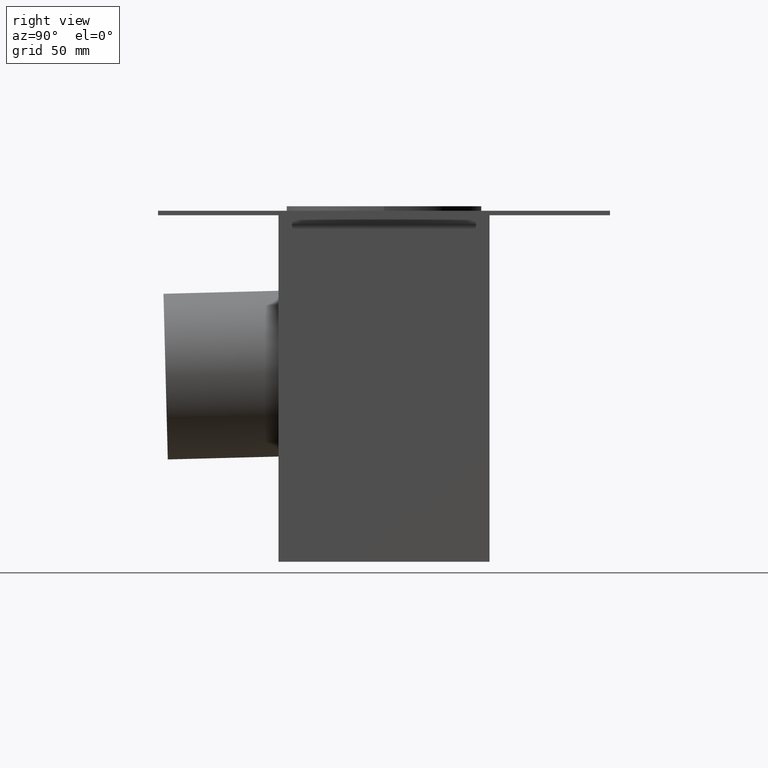
[diagram: clean part render]
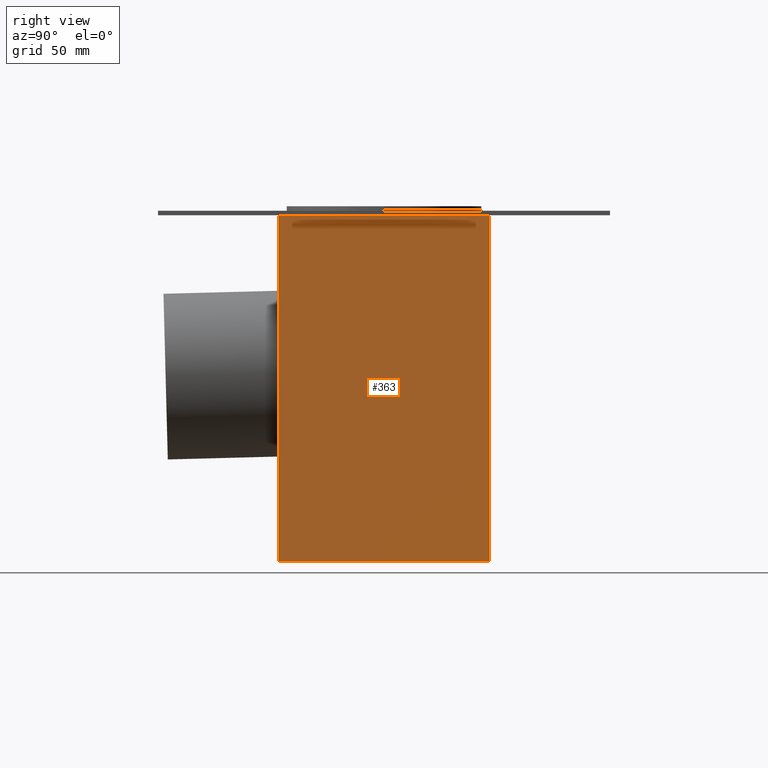
[diagram: same view with one face highlighted and labeled with its STEP entity id]
A machine part, right view. The second image highlights one B-rep face of the part: STEP entity #363.
In plain terms, the highlighted planar face has unit normal (1, 0, 0).
Its self-contained STEP definition (entity closure, byte-faithful):
#27=PLANE('',#418);
#47=FACE_OUTER_BOUND('',#73,.T.);
#73=EDGE_LOOP('',(#277,#278,#279,#280));
#97=LINE('',#588,#129);
#98=LINE('',#590,#130);
#99=LINE('',#592,#131);
#100=LINE('',#593,#132);
#129=VECTOR('',#480,304.8);
#130=VECTOR('',#481,304.8);
#131=VECTOR('',#482,304.8);
#132=VECTOR('',#483,304.8);
#181=VERTEX_POINT('',#586);
#182=VERTEX_POINT('',#587);
#183=VERTEX_POINT('',#589);
#184=VERTEX_POINT('',#591);
#217=EDGE_CURVE('',#181,#182,#97,.T.);
#218=EDGE_CURVE('',#183,#181,#98,.T.);
#219=EDGE_CURVE('',#184,#183,#99,.T.);
#220=EDGE_CURVE('',#182,#184,#100,.T.);
#277=ORIENTED_EDGE('',*,*,#217,.F.);
#278=ORIENTED_EDGE('',*,*,#218,.F.);
#279=ORIENTED_EDGE('',*,*,#219,.F.);
#280=ORIENTED_EDGE('',*,*,#220,.F.);
#363=ADVANCED_FACE('',(#47),#27,.T.);
#418=AXIS2_PLACEMENT_3D('',#585,#478,#479);
#478=DIRECTION('center_axis',(1.,6.0427853197455E-17,0.));
#479=DIRECTION('ref_axis',(0.,0.,-1.));
#480=DIRECTION('',(0.,1.,0.));
#481=DIRECTION('',(0.,0.,1.));
#482=DIRECTION('',(0.,-1.,0.));
#483=DIRECTION('',(0.,0.,-1.));
#585=CARTESIAN_POINT('Origin',(70.0000000000001,-69.9999999999996,0.));
#586=CARTESIAN_POINT('',(70.0000000000001,-69.9999999999996,0.));
#587=CARTESIAN_POINT('',(70.0000000000001,70.0000000000003,0.));
#588=CARTESIAN_POINT('',(70.0000000000001,-69.9999999999996,0.));
#589=CARTESIAN_POINT('',(70.0000000000001,-69.9999999999996,-230.));
#590=CARTESIAN_POINT('',(70.0000000000001,-69.9999999999996,-230.));
#591=CARTESIAN_POINT('',(70.0000000000001,70.0000000000003,-230.));
#592=CARTESIAN_POINT('',(70.0000000000001,70.0000000000003,-230.));
#593=CARTESIAN_POINT('',(70.0000000000001,70.0000000000003,0.));